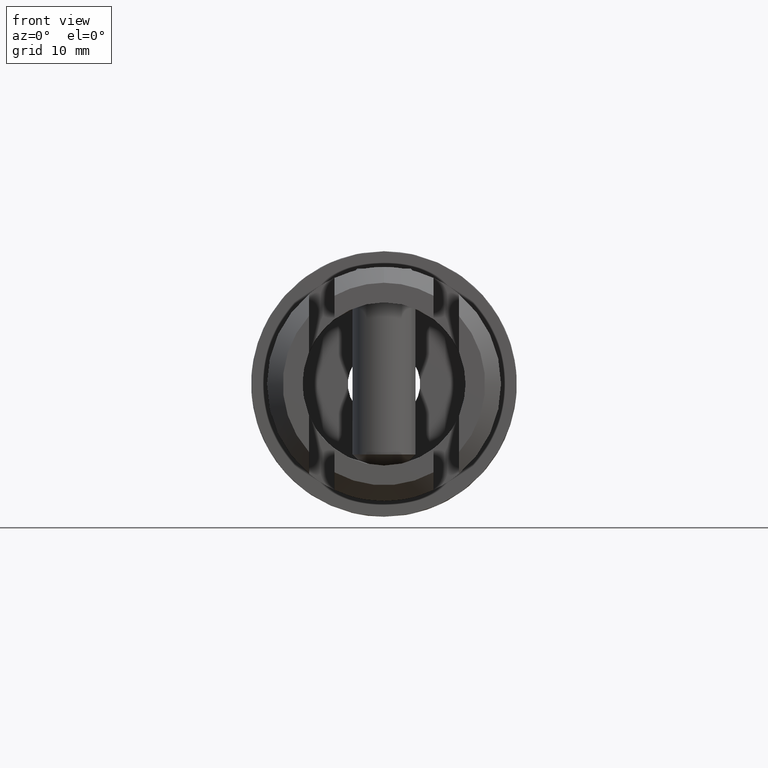
[diagram: clean part render]
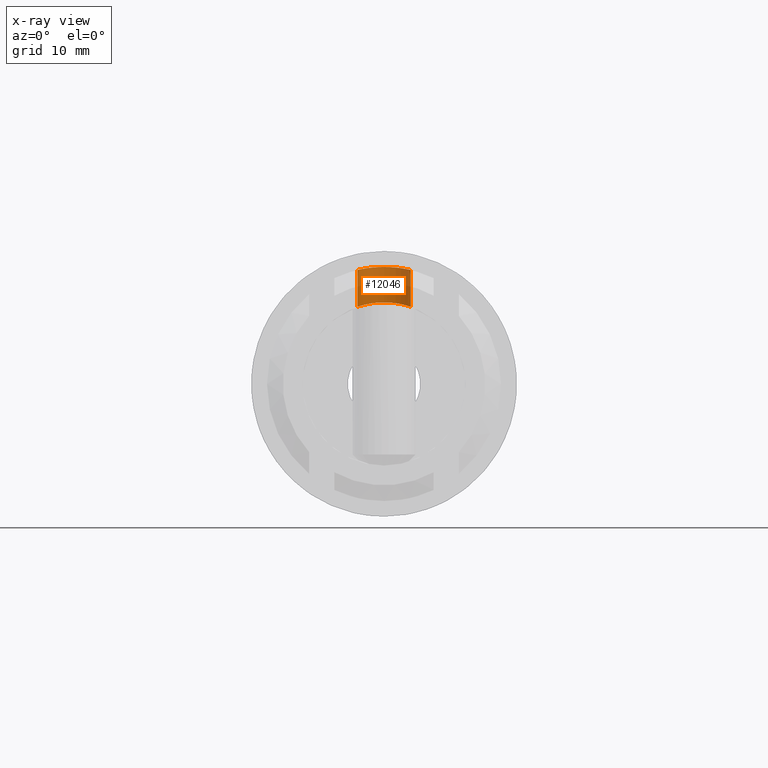
[diagram: x-ray — body ghosted, one internal face saturated and labeled with its STEP entity id]
A machine part, front view, then the same camera in x-ray: the body is ghosted and one INTERNAL B-rep face — a face not visible from any outside direction — is saturated and labeled: STEP entity #12046.
In plain terms, the highlighted cylindrical surface (edge-blend (fillet) strip) has radius 3.4 mm, axis along (0, 0, 1).
Its self-contained STEP definition (entity closure, byte-faithful):
#41 = CARTESIAN_POINT ( 'NONE',  ( 2.700936323374651500, -22.92278250909375700, 14.60285812589919500 ) ) ;
#133 = VERTEX_POINT ( 'NONE', #1400 ) ;
#196 = VERTEX_POINT ( 'NONE', #3526 ) ;
#266 = CARTESIAN_POINT ( 'NONE',  ( -2.249839782766207600, -22.44124719612382500, 10.10379006992122600 ) ) ;
#285 = EDGE_LOOP ( 'NONE', ( #12725, #13803, #4816, #11823, #2672, #1258 ) ) ;
#303 = B_SPLINE_CURVE_WITH_KNOTS ( 'NONE', 3,
 ( #9823, #6434, #8776, #9736, #4297, #5483, #4342, #6525, #5395, #12072, #41, #11056, #12315, #7969, #4511, #12109, #2566, #1432 ),
 .UNSPECIFIED., .F., .F.,
 ( 4, 2, 2, 2, 2, 2, 2, 2, 4 ),
 ( 0.01599791487015214000, 0.01666415790364761700, 0.01733040093714309500, 0.01799664397063857300, 0.01866288700413405000, 0.01932913003762953100, 0.01999537307112500900, 0.02066161610462048700, 0.02132785913811596400 ),
 .UNSPECIFIED. ) ;
#315 = CARTESIAN_POINT ( 'NONE',  ( -2.948008151745721500, -23.29176402211345800, 9.922100598964487300 ) ) ;
#633 = CARTESIAN_POINT ( 'NONE',  ( 2.701391935896606500, -22.92354968645598100, 9.992068611870221800 ) ) ;
#908 = EDGE_CURVE ( 'NONE', #3195, #5832, #5072, .T. ) ;
#1258 = ORIENTED_EDGE ( 'NONE', *, *, #11970, .F. ) ;
#1261 = VERTEX_POINT ( 'NONE', #4546 ) ;
#1361 = B_SPLINE_CURVE_WITH_KNOTS ( 'NONE', 3,
 ( #12681, #9518, #12631, #9337, #11524, #6166, #13747, #633, #13846, #6114, #8280, #1766, #9430, #2927, #10496, #12732 ),
 .UNSPECIFIED., .F., .F.,
 ( 4, 2, 2, 2, 2, 2, 2, 4 ),
 ( 0.0000000000000000000, 0.0006692266279032026100, 0.001338453255806405200, 0.002007679883709608200, 0.002676906511612810400, 0.004015359767419223200, 0.004684586395322429400, 0.005353813023225633900 ),
 .UNSPECIFIED. ) ;
#1371 = CARTESIAN_POINT ( 'NONE',  ( -3.054646258395528100, -23.49061896504947500, 9.889367985540745900 ) ) ;
#1400 = CARTESIAN_POINT ( 'NONE',  ( 1.267509438238515500E-015, -21.60000000000000900, 10.35000000000000000 ) ) ;
#1429 = CARTESIAN_POINT ( 'NONE',  ( -3.224706930697297700, -23.89983633776110100, 9.835228931167836900 ) ) ;
#1432 = CARTESIAN_POINT ( 'NONE',  ( 3.399999999999995500, -25.00000000000000000, 14.45553527199875400 ) ) ;
#1528 = CARTESIAN_POINT ( 'NONE',  ( -3.289612249662341000, -24.11188435877925300, 9.813415253692499000 ) ) ;
#1582 = CARTESIAN_POINT ( 'NONE',  ( -3.399999999999989300, -25.00000000000000000, 9.775607398008578000 ) ) ;
#1733 = CARTESIAN_POINT ( 'NONE',  ( 3.399999999999995500, -25.00000000000000000, 14.85000000000000100 ) ) ;
#1745 = CARTESIAN_POINT ( 'NONE',  ( -3.399999999999989300, -25.00000000000000000, 9.775607398008578000 ) ) ;
#1766 = CARTESIAN_POINT ( 'NONE',  ( 1.101451452984497400, -21.77574459522221400, 10.29328751494545800 ) ) ;
#1910 = CARTESIAN_POINT ( 'NONE',  ( -3.290470808657446300, -24.11488941346269100, 14.48093014246130000 ) ) ;
#2163 = B_SPLINE_CURVE_WITH_KNOTS ( 'NONE', 3,
 ( #12457, #10104, #2706, #13430, #12310, #5857, #5751, #10288, #266, #11307, #7919, #315, #1371, #1429, #1528, #3593, #10147, #1582 ),
 .UNSPECIFIED., .F., .F.,
 ( 4, 2, 2, 2, 2, 2, 2, 2, 4 ),
 ( 0.005353813023225633900, 0.006022654489457149800, 0.006691495955688665800, 0.007360337421920180900, 0.008029178888151695900, 0.008698020354383212800, 0.009366861820614727800, 0.01003570328684624500, 0.01070454475307776000 ),
 .UNSPECIFIED. ) ;
#2566 = CARTESIAN_POINT ( 'NONE',  ( 3.399999999999995900, -24.77466075377429200, 14.45553527199875400 ) ) ;
#2672 = ORIENTED_EDGE ( 'NONE', *, *, #6739, .F. ) ;
#2706 = CARTESIAN_POINT ( 'NONE',  ( -0.4505096740668809700, -21.62260807527681900, 10.34251180320652900 ) ) ;
#2707 = DIRECTION ( 'NONE',  ( -0.0000000000000000000, -0.0000000000000000000, 1.000000000000000000 ) ) ;
#2917 = CARTESIAN_POINT ( 'NONE',  ( -3.399999999999989300, -25.00000000000000000, 14.45553527199875500 ) ) ;
#2927 = CARTESIAN_POINT ( 'NONE',  ( 0.4454503112118056200, -21.62185377550479300, 10.34275815717657200 ) ) ;
#2964 = CARTESIAN_POINT ( 'NONE',  ( -1.511308637407351700, -21.94614690518061600, 14.77435202973039600 ) ) ;
#3195 = VERTEX_POINT ( 'NONE', #1745 ) ;
#3526 = CARTESIAN_POINT ( 'NONE',  ( -2.555800684681324000E-018, -21.60000000000000900, 14.85000000000000100 ) ) ;
#3593 = CARTESIAN_POINT ( 'NONE',  ( -3.377766791417579300, -24.55168130966236000, 9.783422672936588100 ) ) ;
#3894 = FACE_OUTER_BOUND ( 'NONE', #285, .T. ) ;
#3986 = CARTESIAN_POINT ( 'NONE',  ( -3.055494253167640100, -23.49232507677583500, 14.53251552761839900 ) ) ;
#4032 = CARTESIAN_POINT ( 'NONE',  ( -0.4487601650951915700, -21.60000000000001200, 14.85000000000000300 ) ) ;
#4049 = EDGE_CURVE ( 'NONE', #1261, #5167, #11199, .T. ) ;
#4297 = CARTESIAN_POINT ( 'NONE',  ( 1.098405482353837800, -21.77465923738292400, 14.81075287600905300 ) ) ;
#4342 = CARTESIAN_POINT ( 'NONE',  ( 1.703751407997442500, -22.04926678053230300, 14.75312111691014600 ) ) ;
#4511 = CARTESIAN_POINT ( 'NONE',  ( 3.290162484879485500, -24.11412040009240000, 14.48099974352454900 ) ) ;
#4546 = CARTESIAN_POINT ( 'NONE',  ( 3.399999999999995500, -25.00000000000000000, 9.775607398008578000 ) ) ;
#4731 = CYLINDRICAL_SURFACE ( 'NONE', #10745, 3.399999999999992400 ) ;
#4816 = ORIENTED_EDGE ( 'NONE', *, *, #5254, .F. ) ;
#5014 = CARTESIAN_POINT ( 'NONE',  ( -3.399999999999988800, -24.77768229591350400, 14.45553527199875400 ) ) ;
#5072 = LINE ( 'NONE', #8303, #8326 ) ;
#5167 = VERTEX_POINT ( 'NONE', #7080 ) ;
#5254 = EDGE_CURVE ( 'NONE', #1261, #133, #1361, .T. ) ;
#5395 = CARTESIAN_POINT ( 'NONE',  ( 2.247184282673763800, -22.43897056874735800, 14.67983958621739900 ) ) ;
#5483 = CARTESIAN_POINT ( 'NONE',  ( 1.508618589056915900, -21.94494065664574100, 14.77460541979471200 ) ) ;
#5751 = CARTESIAN_POINT ( 'NONE',  ( -1.710374636793558200, -22.05325478734995000, 10.20940093677250700 ) ) ;
#5832 = VERTEX_POINT ( 'NONE', #7155 ) ;
#5857 = CARTESIAN_POINT ( 'NONE',  ( -1.514218361672108500, -21.94756741074212100, 10.24075756514743900 ) ) ;
#6114 = CARTESIAN_POINT ( 'NONE',  ( 2.091676469766816200, -22.28360442566475200, 10.14149672746026300 ) ) ;
#6150 = CARTESIAN_POINT ( 'NONE',  ( -2.248290664610106000, -22.43985649133915300, 14.67967664376611100 ) ) ;
#6166 = CARTESIAN_POINT ( 'NONE',  ( 3.052766957080746700, -23.48666601703404700, 9.889954007256733300 ) ) ;
#6434 = CARTESIAN_POINT ( 'NONE',  ( 0.2242700084203881900, -21.60000000000000900, 14.85000000000000500 ) ) ;
#6525 = CARTESIAN_POINT ( 'NONE',  ( 2.074089942636517600, -22.29671564526083600, 14.70562825792653800 ) ) ;
#6739 = EDGE_CURVE ( 'NONE', #196, #5167, #303, .T. ) ;
#7080 = CARTESIAN_POINT ( 'NONE',  ( 3.399999999999995500, -25.00000000000000000, 14.45553527199875400 ) ) ;
#7155 = CARTESIAN_POINT ( 'NONE',  ( -3.399999999999989300, -25.00000000000000000, 14.45553527199875500 ) ) ;
#7258 = CARTESIAN_POINT ( 'NONE',  ( -1.706305025088354900, -22.05085680602297400, 14.75280930528775200 ) ) ;
#7919 = CARTESIAN_POINT ( 'NONE',  ( -2.702117574100883600, -22.92457646861168300, 9.991866340902774400 ) ) ;
#7969 = CARTESIAN_POINT ( 'NONE',  ( 3.224055397822803900, -23.89795487756371300, 14.49605277320326200 ) ) ;
#8280 = CARTESIAN_POINT ( 'NONE',  ( 1.714708922145792500, -22.03085093227106100, 10.21528883521009600 ) ) ;
#8303 = CARTESIAN_POINT ( 'NONE',  ( -3.399999999999989300, -25.00000000000000000, 14.85000000000000100 ) ) ;
#8326 = VECTOR ( 'NONE', #8403, 1000.000000000000000 ) ;
#8366 = CARTESIAN_POINT ( 'NONE',  ( -2.561696882569616900, -22.75347940598259600, 14.62824071308434300 ) ) ;
#8403 = DIRECTION ( 'NONE',  ( -0.0000000000000000000, -0.0000000000000000000, 1.000000000000000000 ) ) ;
#8776 = CARTESIAN_POINT ( 'NONE',  ( 0.4453932738027651700, -21.62197400476671700, 14.84492412824512200 ) ) ;
#8799 = VECTOR ( 'NONE', #2707, 1000.000000000000000 ) ;
#9337 = CARTESIAN_POINT ( 'NONE',  ( 3.290209401338214600, -24.11448948153646700, 9.813213182969324300 ) ) ;
#9430 = CARTESIAN_POINT ( 'NONE',  ( 0.8853208742777067800, -21.70963454257767100, 10.31442093513588000 ) ) ;
#9518 = CARTESIAN_POINT ( 'NONE',  ( 3.399999999999996400, -24.77357860714353100, 9.775607398008578000 ) ) ;
#9736 = CARTESIAN_POINT ( 'NONE',  ( 0.8815236860961593900, -21.70874632037090600, 14.82541950612373900 ) ) ;
#9823 = CARTESIAN_POINT ( 'NONE',  ( -2.555800684681324000E-018, -21.60000000000000900, 14.85000000000000100 ) ) ;
#9876 = EDGE_CURVE ( 'NONE', #133, #3195, #2163, .T. ) ;
#9982 = DIRECTION ( 'NONE',  ( -0.0000000000000000000, -0.0000000000000000000, 1.000000000000000000 ) ) ;
#10104 = CARTESIAN_POINT ( 'NONE',  ( -0.2235243261183255400, -21.60000000000000500, 10.35000000000000500 ) ) ;
#10147 = CARTESIAN_POINT ( 'NONE',  ( -3.399999999999989300, -24.77711340382096600, 9.775607398008579800 ) ) ;
#10288 = CARTESIAN_POINT ( 'NONE',  ( -2.076902594640042600, -22.29904380656773100, 10.14118950115495800 ) ) ;
#10489 = CARTESIAN_POINT ( 'NONE',  ( -3.225375575062789500, -23.90178271501134000, 14.49575817580435300 ) ) ;
#10496 = CARTESIAN_POINT ( 'NONE',  ( 0.2236530457140137900, -21.60000000000001600, 10.35000000000000000 ) ) ;
#10534 = CARTESIAN_POINT ( 'NONE',  ( -0.8913925986930856200, -21.68854875863236500, 14.82902714336304800 ) ) ;
#10745 = AXIS2_PLACEMENT_3D ( 'NONE', #13262, #9982, #11030 ) ;
#11030 = DIRECTION ( 'NONE',  ( 1.000000000000000000, 0.0000000000000000000, 0.0000000000000000000 ) ) ;
#11056 = CARTESIAN_POINT ( 'NONE',  ( 2.949472334336559000, -23.29398051698268200, 14.55469461778734800 ) ) ;
#11199 = LINE ( 'NONE', #1733, #8799 ) ;
#11307 = CARTESIAN_POINT ( 'NONE',  ( -2.562604842947010300, -22.75454873614095100, 10.02902833000589100 ) ) ;
#11524 = CARTESIAN_POINT ( 'NONE',  ( 3.224041749562552600, -23.89767489581282300, 9.835452768275349200 ) ) ;
#11603 = CARTESIAN_POINT ( 'NONE',  ( -2.949154643034881000, -23.29357237295215200, 14.55475341938234900 ) ) ;
#11654 = CARTESIAN_POINT ( 'NONE',  ( -2.555800684681324000E-018, -21.60000000000000900, 14.85000000000000100 ) ) ;
#11702 = B_SPLINE_CURVE_WITH_KNOTS ( 'NONE', 3,
 ( #2917, #5014, #11708, #1910, #10489, #3986, #11603, #12721, #8366, #6150, #13835, #7258, #2964, #10534, #4032, #11654 ),
 .UNSPECIFIED., .F., .F.,
 ( 4, 2, 2, 2, 2, 2, 2, 4 ),
 ( 0.01066535460833567900, 0.01133192464106273600, 0.01199849467378979300, 0.01266506470651685200, 0.01333163473924390900, 0.01399820477197096700, 0.01466477480469802500, 0.01599791487015214000 ),
 .UNSPECIFIED. ) ;
#11708 = CARTESIAN_POINT ( 'NONE',  ( -3.378409061029074700, -24.55618572647576100, 14.46066693309225200 ) ) ;
#11823 = ORIENTED_EDGE ( 'NONE', *, *, #4049, .T. ) ;
#11970 = EDGE_CURVE ( 'NONE', #5832, #196, #11702, .T. ) ;
#12046 = ADVANCED_FACE ( 'NONE', ( #3894 ), #4731, .F. ) ;
#12072 = CARTESIAN_POINT ( 'NONE',  ( 2.559414751364111200, -22.75097686127109900, 14.62863368903163100 ) ) ;
#12109 = CARTESIAN_POINT ( 'NONE',  ( 3.377816161757916100, -24.55244014946844500, 14.46080498195841600 ) ) ;
#12310 = CARTESIAN_POINT ( 'NONE',  ( -1.100556192108072900, -21.77525535479147200, 10.29343231497453500 ) ) ;
#12315 = CARTESIAN_POINT ( 'NONE',  ( 3.053872350173792300, -23.48907302328670400, 14.53285735430470300 ) ) ;
#12457 = CARTESIAN_POINT ( 'NONE',  ( 1.267509438238515500E-015, -21.60000000000000900, 10.35000000000000000 ) ) ;
#12631 = CARTESIAN_POINT ( 'NONE',  ( 3.377611471670436400, -24.55128235001931000, 9.783474414823070100 ) ) ;
#12681 = CARTESIAN_POINT ( 'NONE',  ( 3.399999999999995500, -25.00000000000000000, 9.775607398008578000 ) ) ;
#12721 = CARTESIAN_POINT ( 'NONE',  ( -2.701881335136314000, -22.92412774821560700, 14.60267774959094000 ) ) ;
#12725 = ORIENTED_EDGE ( 'NONE', *, *, #908, .F. ) ;
#12732 = CARTESIAN_POINT ( 'NONE',  ( 1.267509438238515500E-015, -21.60000000000000900, 10.35000000000000000 ) ) ;
#13262 = CARTESIAN_POINT ( 'NONE',  ( 3.061616997868383000E-015, -25.00000000000000000, 14.85000000000000100 ) ) ;
#13430 = CARTESIAN_POINT ( 'NONE',  ( -0.8878136159129237400, -21.71039179186747200, 10.31417938322258200 ) ) ;
#13747 = CARTESIAN_POINT ( 'NONE',  ( 2.948194907520260700, -23.29198621691279000, 9.922051215495761400 ) ) ;
#13803 = ORIENTED_EDGE ( 'NONE', *, *, #9876, .F. ) ;
#13835 = CARTESIAN_POINT ( 'NONE',  ( -2.074014583628347900, -22.29678230175228000, 14.70562214745515200 ) ) ;
#13846 = CARTESIAN_POINT ( 'NONE',  ( 2.558937118357953500, -22.75048457064617600, 10.02995425742838800 ) ) ;